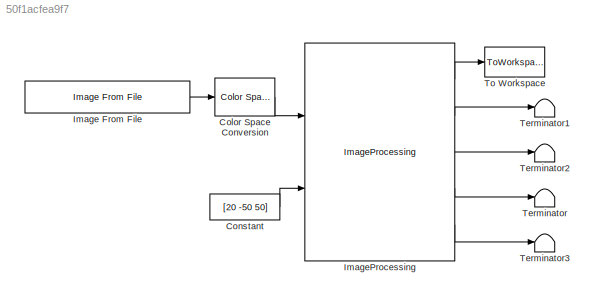
MODEL slx_50f1acfea9f7
KIND model
CONFIG AbsTol = auto
CONFIG EnableMultiTasking = off
CONFIG FixedStep = auto
CONFIG MaxStep = auto
CONFIG MinStep = auto
CONFIG RelTol = 1e-3
CONFIG SampleTimeConstraint = Unconstrained
CONFIG Solver = FixedStepDiscrete
CONFIG SolverName = FixedStepDiscrete
CONFIG StartTime = 0.0
CONFIG StopFcn = imshow(image.signals.values)\n
CONFIG StopTime = 0
BLOCK [Reference] Color Space Conversion  REF=visionconversions/Color Space
 Conversion
  Ports = [1, 1]
  SourceBlock = visionconversions/Color Space\n Conversion
  SourceProductBaseCode = VP
  SourceProductName = Computer Vision System Toolbox
  SourceType = Color Space Conversion
BLOCK [Constant] Constant
  Value = [20 -50 50]
BLOCK [Reference] Image From File  REF=visionsources/Image From File
  Ports = [0, 1]
  SourceBlock = visionsources/Image From File
  SourceProductBaseCode = VP
  SourceProductName = Computer Vision System Toolbox
  SourceType = Image From File
  Tag = vipblks_nd
BLOCK [Reference] ImageProcessing  REF=ImageProcessing_cl/ImageProcessing
  Ports = [2, 5]
  SourceBlock = ImageProcessing_cl/ImageProcessing
BLOCK [Terminator] Terminator
BLOCK [Terminator] Terminator1
BLOCK [Terminator] Terminator2
BLOCK [Terminator] Terminator3
BLOCK [ToWorkspace] To Workspace
  FixptAsFi = on
  MaxDataPoints = inf
  Ports = [1]
  SampleTime = -1
  Save2DSignal = 3-D array (concatenate along third dimension)
  SaveFormat = Structure With Time
  VariableName = image
LINE Color Space Conversion:1 -> ImageProcessing:1
LINE Constant:1 -> ImageProcessing:2
LINE Image From File:1 -> Color Space Conversion:1
LINE ImageProcessing:1 -> To Workspace:1
LINE ImageProcessing:2 -> Terminator1:1
LINE ImageProcessing:3 -> Terminator2:1
LINE ImageProcessing:4 -> Terminator:1
LINE ImageProcessing:5 -> Terminator3:1
